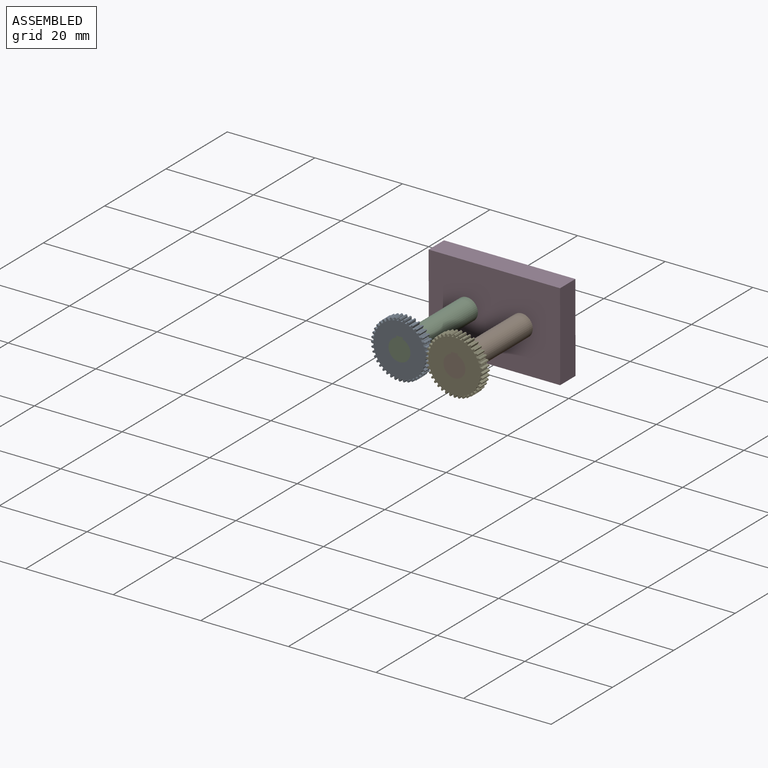
[diagram: assembled view]
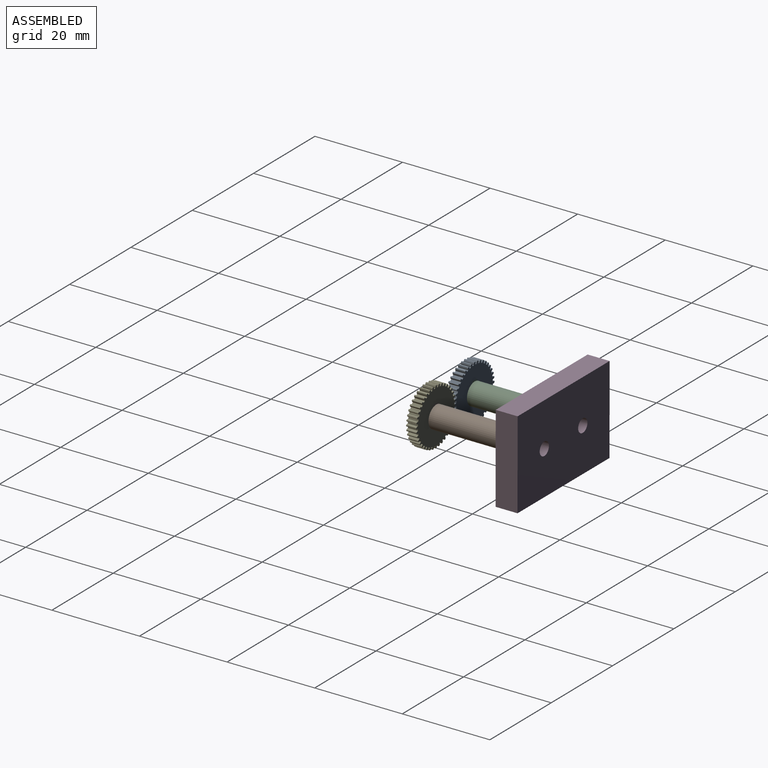
[diagram: assembled view, second angle]
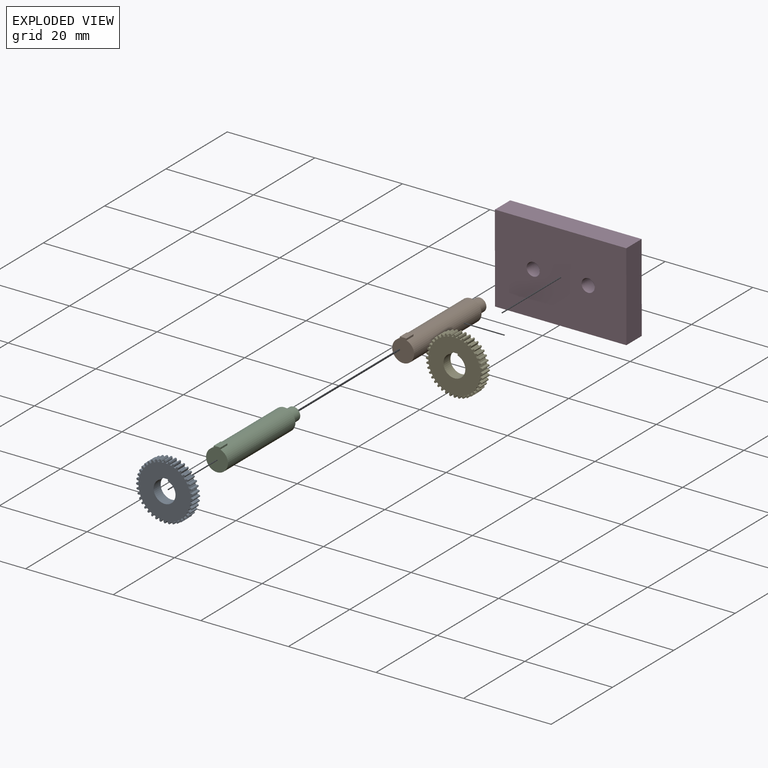
[diagram: exploded view]
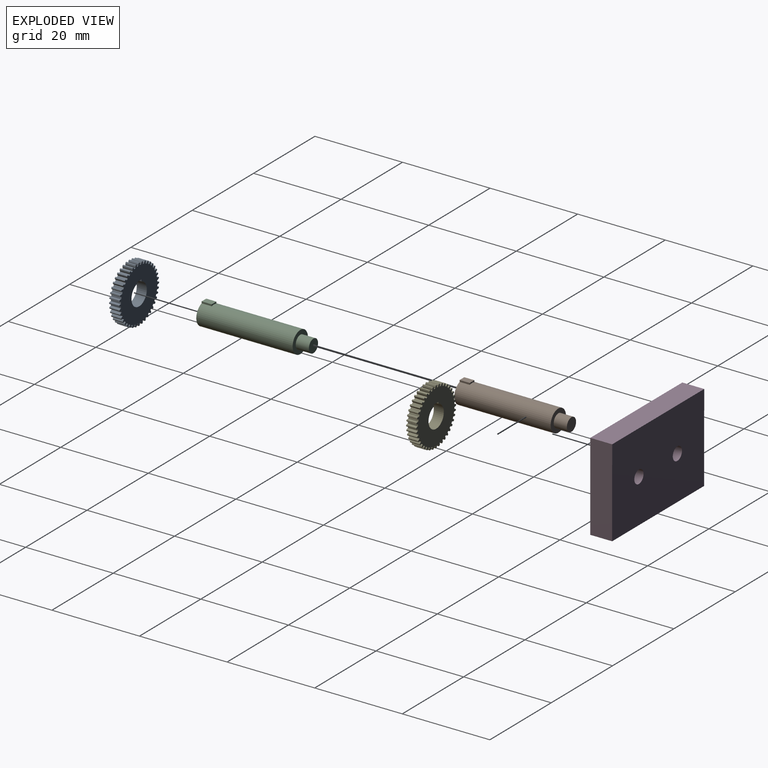
[diagram: exploded view, second angle]
ASSEMBLY  parts=5 mates=4
PART A: 246 faces, bbox 13x2.3x13 mm
  f0: cylinder r=5.95mm len=2.3mm, axis (0,-1,0), area 1mm2, adj f40,f41,f236,f237
  f1: cylinder r=5.95mm len=2.3mm, axis (0,-1,0), area 1mm2, adj f40,f41,f231,f232
  f2: cylinder r=5.95mm len=2.3mm, axis (0,-1,0), area 1mm2, adj f40,f41,f226,f227
  f3: cylinder r=5.95mm len=2.3mm, axis (0,-1,0), area 1mm2, adj f40,f41,f221,f222
  f4: cylinder r=5.95mm len=2.3mm, axis (0,-1,0), area 1mm2, adj f40,f41,f216,f217
  f5: cylinder r=5.95mm len=2.3mm, axis (0,-1,0), area 1mm2, adj f40,f41,f211,f212
  f6: cylinder r=5.95mm len=2.3mm, axis (0,-1,0), area 1mm2, adj f40,f41,f206,f207
  f7: cylinder r=5.95mm len=2.3mm, axis (0,-1,0), area 1mm2, adj f40,f41,f201,f202
  f8: cylinder r=5.95mm len=2.3mm, axis (0,-1,0), area 1mm2, adj f40,f41,f196,f197
  f9: cylinder r=5.95mm len=2.3mm, axis (0,-1,0), area 1mm2, adj f40,f41,f191,f192
  f10: cylinder r=5.95mm len=2.3mm, axis (0,-1,0), area 1mm2, adj f40,f41,f186,f187
  f11: cylinder r=5.95mm len=2.3mm, axis (0,-1,0), area 1mm2, adj f40,f41,f181,f182
  f12: cylinder r=5.95mm len=2.3mm, axis (0,-1,0), area 1mm2, adj f40,f41,f176,f177
  f13: cylinder r=5.95mm len=2.3mm, axis (0,-1,0), area 1mm2, adj f40,f41,f171,f172
  f14: cylinder r=5.95mm len=2.3mm, axis (0,-1,0), area 1mm2, adj f40,f41,f166,f167
  f15: cylinder r=5.95mm len=2.3mm, axis (0,-1,0), area 1mm2, adj f40,f41,f161,f162
  f16: cylinder r=5.95mm len=2.3mm, axis (0,-1,0), area 1mm2, adj f40,f41,f156,f157
  f17: cylinder r=5.95mm len=2.3mm, axis (0,-1,0), area 1mm2, adj f40,f41,f151,f152
  f18: cylinder r=5.95mm len=2.3mm, axis (0,-1,0), area 1mm2, adj f40,f41,f146,f147
  f19: cylinder r=5.95mm len=2.3mm, axis (0,-1,0), area 1mm2, adj f40,f41,f141,f142
  f20: cylinder r=5.95mm len=2.3mm, axis (0,-1,0), area 1mm2, adj f40,f41,f136,f137
  f21: cylinder r=5.95mm len=2.3mm, axis (0,-1,0), area 1mm2, adj f40,f41,f131,f132
  f22: cylinder r=5.95mm len=2.3mm, axis (0,-1,0), area 1mm2, adj f40,f41,f126,f127
  f23: cylinder r=5.95mm len=2.3mm, axis (0,-1,0), area 1mm2, adj f40,f41,f121,f122
  f24: cylinder r=5.95mm len=2.3mm, axis (0,-1,0), area 1mm2, adj f40,f41,f116,f117
  f25: cylinder r=5.95mm len=2.3mm, axis (0,-1,0), area 1mm2, adj f40,f41,f111,f112
  f26: cylinder r=5.95mm len=2.3mm, axis (0,-1,0), area 1mm2, adj f40,f41,f106,f107
  f27: cylinder r=5.95mm len=2.3mm, axis (0,-1,0), area 1mm2, adj f40,f41,f101,f102
  f28: cylinder r=5.95mm len=2.3mm, axis (0,-1,0), area 1mm2, adj f40,f41,f96,f97
  f29: cylinder r=5.95mm len=2.3mm, axis (0,-1,0), area 1mm2, adj f40,f41,f91,f92
  f30: cylinder r=5.95mm len=2.3mm, axis (0,-1,0), area 1mm2, adj f40,f41,f86,f87
  f31: cylinder r=5.95mm len=2.3mm, axis (0,-1,0), area 1mm2, adj f40,f41,f81,f82
  f32: cylinder r=5.95mm len=2.3mm, axis (0,-1,0), area 1mm2, adj f40,f41,f76,f77
  f33: cylinder r=5.95mm len=2.3mm, axis (0,-1,0), area 1mm2, adj f40,f41,f71,f72
  f34: cylinder r=5.95mm len=2.3mm, axis (0,-1,0), area 1mm2, adj f40,f41,f66,f67
  f35: cylinder r=5.95mm len=2.3mm, axis (0,-1,0), area 1mm2, adj f40,f41,f61,f62
  f36: cylinder r=5.95mm len=2.3mm, axis (0,-1,0), area 1mm2, adj f40,f41,f56,f57
  f37: cylinder r=5.95mm len=2.3mm, axis (0,-1,0), area 1mm2, adj f40,f41,f51,f52
  f38: cylinder r=5.95mm len=2.3mm, axis (0,-1,0), area 1mm2, adj f40,f41,f43,f47
  f39: cylinder r=5.95mm len=2.3mm, axis (0,-1,0), area 1mm2, adj f40,f41,f44,f241
  f40: plane 13x13mm, normal (0,1,0), area 100.7mm2, adj f0,f1,f2,f3,f4,f5,f6,f7
  f41: plane 13x13mm, normal (0,-1,0), area 100.7mm2, adj f0,f1,f2,f3,f4,f5,f6,f7
  f42: plane 2.3x0.29mm, normal (-0.92,0,0.4), area 0.7mm2, adj f40,f41,f43,f46
  f43: plane 2.3x0.27mm, normal (-1,0,0), area 0.6mm2, adj f38,f40,f41,f42
  f44: plane 2.3x0.27mm, normal (1,0,0), area 0.6mm2, adj f39,f40,f41,f45
  f45: plane 2.3x0.29mm, normal (0.92,0,0.4), area 0.7mm2, adj f40,f41,f44,f46
  f46: plane 2.3x0.25mm, normal (0,0,1), area 0.6mm2, adj f40,f41,f42,f45
  f47: plane 2.3x0.27mm, normal (0.99,0,0.16), area 0.6mm2, adj f38,f40,f41,f48
  f48: plane 2.3x0.26mm, normal (0.84,0,0.54), area 0.7mm2, adj f40,f41,f47,f49
  f49: plane 2.3x0.25mm, normal (-0.16,0,0.99), area 0.6mm2, adj f40,f41,f48,f50
  f50: plane 2.3x0.3mm, normal (-0.97,0,0.25), area 0.7mm2, adj f40,f41,f49,f51
  f51: plane 2.3x0.27mm, normal (-0.99,0,-0.16), area 0.6mm2, adj f37,f40,f41,f50
  f52: plane 2.3x0.26mm, normal (0.95,0,0.31), area 0.6mm2, adj f37,f40,f41,f53
  f53: plane 2.3x0.23mm, normal (0.75,0,0.66), area 0.7mm2, adj f40,f41,f52,f54
  f54: plane 2.3x0.24mm, normal (-0.31,0,0.95), area 0.6mm2, adj f40,f41,f53,f55
  f55: plane 2.3x0.31mm, normal (-1,0,0.1), area 0.7mm2, adj f40,f41,f54,f56
  f56: plane 2.3x0.26mm, normal (-0.95,0,-0.31), area 0.6mm2, adj f36,f40,f41,f55
  f57: plane 2.3x0.24mm, normal (0.89,0,0.45), area 0.6mm2, adj f36,f40,f41,f58
  f58: plane 2.3x0.24mm, normal (0.63,0,0.77), area 0.7mm2, adj f40,f41,f57,f59
  f59: plane 2.3x0.22mm, normal (-0.45,0,0.89), area 0.6mm2, adj f40,f41,f58,f60
  f60: plane 2.3x0.31mm, normal (-1,0,-0.06), area 0.7mm2, adj f40,f41,f59,f61
  f61: plane 2.3x0.24mm, normal (-0.89,0,-0.45), area 0.6mm2, adj f35,f40,f41,f60
  f62: plane 2.3x0.22mm, normal (0.81,0,0.59), area 0.6mm2, adj f35,f40,f41,f63
  f63: plane 2.3x0.27mm, normal (0.51,0,0.86), area 0.7mm2, adj f40,f41,f62,f64
  f64: plane 2.3x0.2mm, normal (-0.59,0,0.81), area 0.6mm2, adj f40,f41,f63,f65
  f65: plane 2.3x0.3mm, normal (-0.98,0,-0.21), area 0.7mm2, adj f40,f41,f64,f66
  f66: plane 2.3x0.22mm, normal (-0.81,0,-0.59), area 0.6mm2, adj f34,f40,f41,f65
  f67: plane 2.3x0.19mm, normal (0.71,0,0.71), area 0.6mm2, adj f34,f40,f41,f68
  f68: plane 2.3x0.29mm, normal (0.36,0,0.93), area 0.7mm2, adj f40,f41,f67,f69
  f69: plane 2.3x0.18mm, normal (-0.71,0,0.71), area 0.6mm2, adj f40,f41,f68,f70
  f70: plane 2.3x0.29mm, normal (-0.93,0,-0.36), area 0.7mm2, adj f40,f41,f69,f71
  f71: plane 2.3x0.19mm, normal (-0.71,0,-0.71), area 0.6mm2, adj f33,f40,f41,f70
  f72: plane 2.3x0.22mm, normal (0.59,0,0.81), area 0.6mm2, adj f33,f40,f41,f73
  f73: plane 2.3x0.3mm, normal (0.21,0,0.98), area 0.7mm2, adj f40,f41,f72,f74
  f74: plane 2.3x0.2mm, normal (-0.81,0,0.59), area 0.6mm2, adj f40,f41,f73,f75
  f75: plane 2.3x0.27mm, normal (-0.86,0,-0.51), area 0.7mm2, adj f40,f41,f74,f76
  f76: plane 2.3x0.22mm, normal (-0.59,0,-0.81), area 0.6mm2, adj f32,f40,f41,f75
  f77: plane 2.3x0.24mm, normal (0.45,0,0.89), area 0.6mm2, adj f32,f40,f41,f78
  f78: plane 2.3x0.31mm, normal (0.06,0,1), area 0.7mm2, adj f40,f41,f77,f79
  f79: plane 2.3x0.22mm, normal (-0.89,0,0.45), area 0.6mm2, adj f40,f41,f78,f80
  f80: plane 2.3x0.24mm, normal (-0.77,0,-0.63), area 0.7mm2, adj f40,f41,f79,f81
  f81: plane 2.3x0.24mm, normal (-0.45,0,-0.89), area 0.6mm2, adj f31,f40,f41,f80
  f82: plane 2.3x0.26mm, normal (0.31,0,0.95), area 0.6mm2, adj f31,f40,f41,f83
  f83: plane 2.3x0.31mm, normal (-0.1,0,1), area 0.7mm2, adj f40,f41,f82,f84
  f84: plane 2.3x0.24mm, normal (-0.95,0,0.31), area 0.6mm2, adj f40,f41,f83,f85
  f85: plane 2.3x0.23mm, normal (-0.66,0,-0.75), area 0.7mm2, adj f40,f41,f84,f86
  f86: plane 2.3x0.26mm, normal (-0.31,0,-0.95), area 0.6mm2, adj f30,f40,f41,f85
  f87: plane 2.3x0.27mm, normal (0.16,0,0.99), area 0.6mm2, adj f30,f40,f41,f88
  f88: plane 2.3x0.3mm, normal (-0.25,0,0.97), area 0.7mm2, adj f40,f41,f87,f89
  f89: plane 2.3x0.25mm, normal (-0.99,0,0.16), area 0.6mm2, adj f40,f41,f88,f90
  f90: plane 2.3x0.26mm, normal (-0.54,0,-0.84), area 0.7mm2, adj f40,f41,f89,f91
  f91: plane 2.3x0.27mm, normal (-0.16,0,-0.99), area 0.6mm2, adj f29,f40,f41,f90
  f92: plane 2.3x0.27mm, normal (0,0,1), area 0.6mm2, adj f29,f40,f41,f93
  f93: plane 2.3x0.29mm, normal (-0.4,0,0.92), area 0.7mm2, adj f40,f41,f92,f94
  f94: plane 2.3x0.25mm, normal (-1,0,0), area 0.6mm2, adj f40,f41,f93,f95
  f95: plane 2.3x0.29mm, normal (-0.4,0,-0.92), area 0.7mm2, adj f40,f41,f94,f96
  f96: plane 2.3x0.27mm, normal (0,0,-1), area 0.6mm2, adj f28,f40,f41,f95
  f97: plane 2.3x0.27mm, normal (-0.16,0,0.99), area 0.6mm2, adj f28,f40,f41,f98
  f98: plane 2.3x0.26mm, normal (-0.54,0,0.84), area 0.7mm2, adj f40,f41,f97,f99
  f99: plane 2.3x0.25mm, normal (-0.99,0,-0.16), area 0.6mm2, adj f40,f41,f98,f100
  f100: plane 2.3x0.3mm, normal (-0.25,0,-0.97), area 0.7mm2, adj f40,f41,f99,f101
  f101: plane 2.3x0.27mm, normal (0.16,0,-0.99), area 0.6mm2, adj f27,f40,f41,f100
  f102: plane 2.3x0.26mm, normal (-0.31,0,0.95), area 0.6mm2, adj f27,f40,f41,f103
  f103: plane 2.3x0.23mm, normal (-0.66,0,0.75), area 0.7mm2, adj f40,f41,f102,f104
  f104: plane 2.3x0.24mm, normal (-0.95,0,-0.31), area 0.6mm2, adj f40,f41,f103,f105
  f105: plane 2.3x0.31mm, normal (-0.1,0,-1), area 0.7mm2, adj f40,f41,f104,f106
  f106: plane 2.3x0.26mm, normal (0.31,0,-0.95), area 0.6mm2, adj f26,f40,f41,f105
  f107: plane 2.3x0.24mm, normal (-0.45,0,0.89), area 0.6mm2, adj f26,f40,f41,f108
  f108: plane 2.3x0.24mm, normal (-0.77,0,0.63), area 0.7mm2, adj f40,f41,f107,f109
  f109: plane 2.3x0.22mm, normal (-0.89,0,-0.45), area 0.6mm2, adj f40,f41,f108,f110
  f110: plane 2.3x0.31mm, normal (0.06,0,-1), area 0.7mm2, adj f40,f41,f109,f111
  f111: plane 2.3x0.24mm, normal (0.45,0,-0.89), area 0.6mm2, adj f25,f40,f41,f110
  f112: plane 2.3x0.22mm, normal (-0.59,0,0.81), area 0.6mm2, adj f25,f40,f41,f113
  f113: plane 2.3x0.27mm, normal (-0.86,0,0.51), area 0.7mm2, adj f40,f41,f112,f114
  f114: plane 2.3x0.2mm, normal (-0.81,0,-0.59), area 0.6mm2, adj f40,f41,f113,f115
  f115: plane 2.3x0.3mm, normal (0.21,0,-0.98), area 0.7mm2, adj f40,f41,f114,f116
  f116: plane 2.3x0.22mm, normal (0.59,0,-0.81), area 0.6mm2, adj f24,f40,f41,f115
  f117: plane 2.3x0.19mm, normal (-0.71,0,0.71), area 0.6mm2, adj f24,f40,f41,f118
  f118: plane 2.3x0.29mm, normal (-0.93,0,0.36), area 0.7mm2, adj f40,f41,f117,f119
  f119: plane 2.3x0.18mm, normal (-0.71,0,-0.71), area 0.6mm2, adj f40,f41,f118,f120
  f120: plane 2.3x0.29mm, normal (0.36,0,-0.93), area 0.7mm2, adj f40,f41,f119,f121
  f121: plane 2.3x0.19mm, normal (0.71,0,-0.71), area 0.6mm2, adj f23,f40,f41,f120
  f122: plane 2.3x0.22mm, normal (-0.81,0,0.59), area 0.6mm2, adj f23,f40,f41,f123
  f123: plane 2.3x0.3mm, normal (-0.98,0,0.21), area 0.7mm2, adj f40,f41,f122,f124
  f124: plane 2.3x0.2mm, normal (-0.59,0,-0.81), area 0.6mm2, adj f40,f41,f123,f125
  f125: plane 2.3x0.27mm, normal (0.51,0,-0.86), area 0.7mm2, adj f40,f41,f124,f126
  f126: plane 2.3x0.22mm, normal (0.81,0,-0.59), area 0.6mm2, adj f22,f40,f41,f125
  f127: plane 2.3x0.24mm, normal (-0.89,0,0.45), area 0.6mm2, adj f22,f40,f41,f128
  f128: plane 2.3x0.31mm, normal (-1,0,0.06), area 0.7mm2, adj f40,f41,f127,f129
  f129: plane 2.3x0.22mm, normal (-0.45,0,-0.89), area 0.6mm2, adj f40,f41,f128,f130
  f130: plane 2.3x0.24mm, normal (0.63,0,-0.77), area 0.7mm2, adj f40,f41,f129,f131
  f131: plane 2.3x0.24mm, normal (0.89,0,-0.45), area 0.6mm2, adj f21,f40,f41,f130
  f132: plane 2.3x0.26mm, normal (-0.95,0,0.31), area 0.6mm2, adj f21,f40,f41,f133
  f133: plane 2.3x0.31mm, normal (-1,0,-0.1), area 0.7mm2, adj f40,f41,f132,f134
  f134: plane 2.3x0.24mm, normal (-0.31,0,-0.95), area 0.6mm2, adj f40,f41,f133,f135
  f135: plane 2.3x0.23mm, normal (0.75,0,-0.66), area 0.7mm2, adj f40,f41,f134,f136
  f136: plane 2.3x0.26mm, normal (0.95,0,-0.31), area 0.6mm2, adj f20,f40,f41,f135
  f137: plane 2.3x0.27mm, normal (-0.99,0,0.16), area 0.6mm2, adj f20,f40,f41,f138
  f138: plane 2.3x0.3mm, normal (-0.97,0,-0.25), area 0.7mm2, adj f40,f41,f137,f139
  f139: plane 2.3x0.25mm, normal (-0.16,0,-0.99), area 0.6mm2, adj f40,f41,f138,f140
  f140: plane 2.3x0.26mm, normal (0.84,0,-0.54), area 0.7mm2, adj f40,f41,f139,f141
  f141: plane 2.3x0.27mm, normal (0.99,0,-0.16), area 0.6mm2, adj f19,f40,f41,f140
  f142: plane 2.3x0.27mm, normal (-1,0,0), area 0.6mm2, adj f19,f40,f41,f143
  f143: plane 2.3x0.29mm, normal (-0.92,0,-0.4), area 0.7mm2, adj f40,f41,f142,f144
  f144: plane 2.3x0.25mm, normal (0,0,-1), area 0.6mm2, adj f40,f41,f143,f145
  f145: plane 2.3x0.29mm, normal (0.92,0,-0.4), area 0.7mm2, adj f40,f41,f144,f146
  f146: plane 2.3x0.27mm, normal (1,0,0), area 0.6mm2, adj f18,f40,f41,f145
  f147: plane 2.3x0.27mm, normal (-0.99,0,-0.16), area 0.6mm2, adj f18,f40,f41,f148
  f148: plane 2.3x0.26mm, normal (-0.84,0,-0.54), area 0.7mm2, adj f40,f41,f147,f149
  f149: plane 2.3x0.25mm, normal (0.16,0,-0.99), area 0.6mm2, adj f40,f41,f148,f150
  f150: plane 2.3x0.3mm, normal (0.97,0,-0.25), area 0.7mm2, adj f40,f41,f149,f151
  f151: plane 2.3x0.27mm, normal (0.99,0,0.16), area 0.6mm2, adj f17,f40,f41,f150
  f152: plane 2.3x0.26mm, normal (-0.95,0,-0.31), area 0.6mm2, adj f17,f40,f41,f153
  f153: plane 2.3x0.23mm, normal (-0.75,0,-0.66), area 0.7mm2, adj f40,f41,f152,f154
  f154: plane 2.3x0.24mm, normal (0.31,0,-0.95), area 0.6mm2, adj f40,f41,f153,f155
  f155: plane 2.3x0.31mm, normal (1,0,-0.1), area 0.7mm2, adj f40,f41,f154,f156
  f156: plane 2.3x0.26mm, normal (0.95,0,0.31), area 0.6mm2, adj f16,f40,f41,f155
  f157: plane 2.3x0.24mm, normal (-0.89,0,-0.45), area 0.6mm2, adj f16,f40,f41,f158
  f158: plane 2.3x0.24mm, normal (-0.63,0,-0.77), area 0.7mm2, adj f40,f41,f157,f159
  f159: plane 2.3x0.22mm, normal (0.45,0,-0.89), area 0.6mm2, adj f40,f41,f158,f160
  f160: plane 2.3x0.31mm, normal (1,0,0.06), area 0.7mm2, adj f40,f41,f159,f161
  f161: plane 2.3x0.24mm, normal (0.89,0,0.45), area 0.6mm2, adj f15,f40,f41,f160
  f162: plane 2.3x0.22mm, normal (-0.81,0,-0.59), area 0.6mm2, adj f15,f40,f41,f163
  f163: plane 2.3x0.27mm, normal (-0.51,0,-0.86), area 0.7mm2, adj f40,f41,f162,f164
  f164: plane 2.3x0.2mm, normal (0.59,0,-0.81), area 0.6mm2, adj f40,f41,f163,f165
  f165: plane 2.3x0.3mm, normal (0.98,0,0.21), area 0.7mm2, adj f40,f41,f164,f166
  f166: plane 2.3x0.22mm, normal (0.81,0,0.59), area 0.6mm2, adj f14,f40,f41,f165
  f167: plane 2.3x0.19mm, normal (-0.71,0,-0.71), area 0.6mm2, adj f14,f40,f41,f168
  f168: plane 2.3x0.29mm, normal (-0.36,0,-0.93), area 0.7mm2, adj f40,f41,f167,f169
  f169: plane 2.3x0.18mm, normal (0.71,0,-0.71), area 0.6mm2, adj f40,f41,f168,f170
  f170: plane 2.3x0.29mm, normal (0.93,0,0.36), area 0.7mm2, adj f40,f41,f169,f171
  f171: plane 2.3x0.19mm, normal (0.71,0,0.71), area 0.6mm2, adj f13,f40,f41,f170
  f172: plane 2.3x0.22mm, normal (-0.59,0,-0.81), area 0.6mm2, adj f13,f40,f41,f173
  f173: plane 2.3x0.3mm, normal (-0.21,0,-0.98), area 0.7mm2, adj f40,f41,f172,f174
  f174: plane 2.3x0.2mm, normal (0.81,0,-0.59), area 0.6mm2, adj f40,f41,f173,f175
  f175: plane 2.3x0.27mm, normal (0.86,0,0.51), area 0.7mm2, adj f40,f41,f174,f176
  f176: plane 2.3x0.22mm, normal (0.59,0,0.81), area 0.6mm2, adj f12,f40,f41,f175
  f177: plane 2.3x0.24mm, normal (-0.45,0,-0.89), area 0.6mm2, adj f12,f40,f41,f178
  f178: plane 2.3x0.31mm, normal (-0.06,0,-1), area 0.7mm2, adj f40,f41,f177,f179
  f179: plane 2.3x0.22mm, normal (0.89,0,-0.45), area 0.6mm2, adj f40,f41,f178,f180
  f180: plane 2.3x0.24mm, normal (0.77,0,0.63), area 0.7mm2, adj f40,f41,f179,f181
  f181: plane 2.3x0.24mm, normal (0.45,0,0.89), area 0.6mm2, adj f11,f40,f41,f180
  f182: plane 2.3x0.26mm, normal (-0.31,0,-0.95), area 0.6mm2, adj f11,f40,f41,f183
  f183: plane 2.3x0.31mm, normal (0.1,0,-1), area 0.7mm2, adj f40,f41,f182,f184
  f184: plane 2.3x0.24mm, normal (0.95,0,-0.31), area 0.6mm2, adj f40,f41,f183,f185
  f185: plane 2.3x0.23mm, normal (0.66,0,0.75), area 0.7mm2, adj f40,f41,f184,f186
  f186: plane 2.3x0.26mm, normal (0.31,0,0.95), area 0.6mm2, adj f10,f40,f41,f185
  f187: plane 2.3x0.27mm, normal (-0.16,0,-0.99), area 0.6mm2, adj f10,f40,f41,f188
  f188: plane 2.3x0.3mm, normal (0.25,0,-0.97), area 0.7mm2, adj f40,f41,f187,f189
  f189: plane 2.3x0.25mm, normal (0.99,0,-0.16), area 0.6mm2, adj f40,f41,f188,f190
  f190: plane 2.3x0.26mm, normal (0.54,0,0.84), area 0.7mm2, adj f40,f41,f189,f191
  f191: plane 2.3x0.27mm, normal (0.16,0,0.99), area 0.6mm2, adj f9,f40,f41,f190
  f192: plane 2.3x0.27mm, normal (0,0,-1), area 0.6mm2, adj f9,f40,f41,f193
  f193: plane 2.3x0.29mm, normal (0.4,0,-0.92), area 0.7mm2, adj f40,f41,f192,f194
  f194: plane 2.3x0.25mm, normal (1,0,0), area 0.6mm2, adj f40,f41,f193,f195
  f195: plane 2.3x0.29mm, normal (0.4,0,0.92), area 0.7mm2, adj f40,f41,f194,f196
  f196: plane 2.3x0.27mm, normal (0,0,1), area 0.6mm2, adj f8,f40,f41,f195
  f197: plane 2.3x0.27mm, normal (0.16,0,-0.99), area 0.6mm2, adj f8,f40,f41,f198
  f198: plane 2.3x0.26mm, normal (0.54,0,-0.84), area 0.7mm2, adj f40,f41,f197,f199
  f199: plane 2.3x0.25mm, normal (0.99,0,0.16), area 0.6mm2, adj f40,f41,f198,f200
  f200: plane 2.3x0.3mm, normal (0.25,0,0.97), area 0.7mm2, adj f40,f41,f199,f201
  f201: plane 2.3x0.27mm, normal (-0.16,0,0.99), area 0.6mm2, adj f7,f40,f41,f200
  f202: plane 2.3x0.26mm, normal (0.31,0,-0.95), area 0.6mm2, adj f7,f40,f41,f203
  f203: plane 2.3x0.23mm, normal (0.66,0,-0.75), area 0.7mm2, adj f40,f41,f202,f204
  f204: plane 2.3x0.24mm, normal (0.95,0,0.31), area 0.6mm2, adj f40,f41,f203,f205
  f205: plane 2.3x0.31mm, normal (0.1,0,1), area 0.7mm2, adj f40,f41,f204,f206
  f206: plane 2.3x0.26mm, normal (-0.31,0,0.95), area 0.6mm2, adj f6,f40,f41,f205
  f207: plane 2.3x0.24mm, normal (0.45,0,-0.89), area 0.6mm2, adj f6,f40,f41,f208
  f208: plane 2.3x0.24mm, normal (0.77,0,-0.63), area 0.7mm2, adj f40,f41,f207,f209
  f209: plane 2.3x0.22mm, normal (0.89,0,0.45), area 0.6mm2, adj f40,f41,f208,f210
  f210: plane 2.3x0.31mm, normal (-0.06,0,1), area 0.7mm2, adj f40,f41,f209,f211
  f211: plane 2.3x0.24mm, normal (-0.45,0,0.89), area 0.6mm2, adj f5,f40,f41,f210
  f212: plane 2.3x0.22mm, normal (0.59,0,-0.81), area 0.6mm2, adj f5,f40,f41,f213
  f213: plane 2.3x0.27mm, normal (0.86,0,-0.51), area 0.7mm2, adj f40,f41,f212,f214
  f214: plane 2.3x0.2mm, normal (0.81,0,0.59), area 0.6mm2, adj f40,f41,f213,f215
  f215: plane 2.3x0.3mm, normal (-0.21,0,0.98), area 0.7mm2, adj f40,f41,f214,f216
  f216: plane 2.3x0.22mm, normal (-0.59,0,0.81), area 0.6mm2, adj f4,f40,f41,f215
  f217: plane 2.3x0.19mm, normal (0.71,0,-0.71), area 0.6mm2, adj f4,f40,f41,f218
  f218: plane 2.3x0.29mm, normal (0.93,0,-0.36), area 0.7mm2, adj f40,f41,f217,f219
  f219: plane 2.3x0.18mm, normal (0.71,0,0.71), area 0.6mm2, adj f40,f41,f218,f220
  f220: plane 2.3x0.29mm, normal (-0.36,0,0.93), area 0.7mm2, adj f40,f41,f219,f221
  f221: plane 2.3x0.19mm, normal (-0.71,0,0.71), area 0.6mm2, adj f3,f40,f41,f220
  f222: plane 2.3x0.22mm, normal (0.81,0,-0.59), area 0.6mm2, adj f3,f40,f41,f223
  f223: plane 2.3x0.3mm, normal (0.98,0,-0.21), area 0.7mm2, adj f40,f41,f222,f224
  f224: plane 2.3x0.2mm, normal (0.59,0,0.81), area 0.6mm2, adj f40,f41,f223,f225
  f225: plane 2.3x0.27mm, normal (-0.51,0,0.86), area 0.7mm2, adj f40,f41,f224,f226
  f226: plane 2.3x0.22mm, normal (-0.81,0,0.59), area 0.6mm2, adj f2,f40,f41,f225
  f227: plane 2.3x0.24mm, normal (0.89,0,-0.45), area 0.6mm2, adj f2,f40,f41,f228
  f228: plane 2.3x0.31mm, normal (1,0,-0.06), area 0.7mm2, adj f40,f41,f227,f229
  f229: plane 2.3x0.22mm, normal (0.45,0,0.89), area 0.6mm2, adj f40,f41,f228,f230
  f230: plane 2.3x0.24mm, normal (-0.63,0,0.77), area 0.7mm2, adj f40,f41,f229,f231
  f231: plane 2.3x0.24mm, normal (-0.89,0,0.45), area 0.6mm2, adj f1,f40,f41,f230
  f232: plane 2.3x0.26mm, normal (0.95,0,-0.31), area 0.6mm2, adj f1,f40,f41,f233
  f233: plane 2.3x0.31mm, normal (1,0,0.1), area 0.7mm2, adj f40,f41,f232,f234
  f234: plane 2.3x0.24mm, normal (0.31,0,0.95), area 0.6mm2, adj f40,f41,f233,f235
  f235: plane 2.3x0.23mm, normal (-0.75,0,0.66), area 0.7mm2, adj f40,f41,f234,f236
  f236: plane 2.3x0.26mm, normal (-0.95,0,0.31), area 0.6mm2, adj f0,f40,f41,f235
  f237: plane 2.3x0.27mm, normal (0.99,0,-0.16), area 0.6mm2, adj f0,f40,f41,f238
  f238: plane 2.3x0.3mm, normal (0.97,0,0.25), area 0.7mm2, adj f40,f41,f237,f239
  f239: plane 2.3x0.25mm, normal (0.16,0,0.99), area 0.6mm2, adj f40,f41,f238,f240
  f240: plane 2.3x0.26mm, normal (-0.84,0,0.54), area 0.7mm2, adj f40,f41,f239,f241
  f241: plane 2.3x0.27mm, normal (-0.99,0,0.16), area 0.6mm2, adj f39,f40,f41,f240
  f242: plane 2.3x0.4mm, normal (1,0,0), area 0.9mm2, adj f40,f41,f243,f244
  f243: plane 2.3x1.5mm, normal (0,0,-1), area 3.4mm2, adj f40,f41,f242,f245
  f244: cylinder r=2.5mm len=5mm, axis (0,-1,0), area 32.6mm2, adj f40,f41,f242,f245
  f245: plane 2.3x0.4mm, normal (-1,0,0), area 0.9mm2, adj f40,f41,f243,f244
PART B: 9 faces, bbox 5x25x5.3 mm
  f0: cylinder r=2.5mm len=22mm, axis (0,1,0), area 342.1mm2, adj f1,f3,f6,f7,f8
  f1: plane 5.28x5mm, normal (0,1,0), area 20.1mm2, adj f0,f5,f6,f7
  f2: cylinder r=1.5mm len=3mm, axis (0,-1,0), area 28.3mm2, adj f3,f4
  f3: plane 5x5mm, normal (0,-1,0), area 12.6mm2, adj f0,f2
  f4: plane 3x3mm, normal (0,-1,0), area 7.1mm2, adj f2
  f5: plane 2.3x1.5mm, normal (0,0,1), area 3.4mm2, adj f1,f6,f7,f8
  f6: plane 2.3x0.4mm, normal (1,0,0), area 0.9mm2, adj f0,f1,f5,f8
  f7: plane 2.3x0.4mm, normal (-1,0,0), area 0.9mm2, adj f0,f1,f5,f8
  f8: plane 1.5x0.4mm, normal (0,-1,0), area 0.5mm2, adj f0,f5,f6,f7
PART C: same geometry as B
PART D: 8 faces, bbox 30x5x20 mm
  f0: plane 30x5mm, normal (0,0,-1), area 150mm2, adj f1,f3,f4,f5
  f1: plane 20x5mm, normal (1,0,0), area 100mm2, adj f0,f2,f4,f5
  f2: plane 30x5mm, normal (0,0,1), area 150mm2, adj f1,f3,f4,f5
  f3: plane 20x5mm, normal (-1,0,0), area 100mm2, adj f0,f2,f4,f5
  f4: plane 30x20mm, normal (0,1,0), area 585.9mm2, adj f0,f1,f2,f3,f6,f7
  f5: plane 30x20mm, normal (0,-1,0), area 585.9mm2, adj f0,f1,f2,f3,f6,f7
  f6: cylinder r=1.5mm len=5mm, axis (0,-1,0), area 47.1mm2, adj f4,f5
  f7: cylinder r=1.5mm len=5mm, axis (0,-1,0), area 47.1mm2, adj f4,f5
PART E: same geometry as A
PLACE A rot(axis=(0,0,1),180deg) t=(34.9,-17.07,17.29)mm
PLACE B rot(axis=(0,0,1),180deg) t=(47.44,-19.37,17.3)mm
PLACE C rot(axis=(0,0,1),180deg) t=(34.9,-19.37,17.29)mm
PLACE D rot(axis=(0,-1,0),0.1deg) t=(41.17,2.63,17.29)mm
PLACE E rot(axis=(0,0,-1),180deg) t=(47.44,-17.07,17.3)mm
MATE fastened E.f244 <-> B.f0  axis (0,-1,0) through (47.44,-19.37,17.3)mm
MATE fastened C.f2 <-> D.f7  axis (0,1,0) through (34.9,2.63,17.29)mm
MATE fastened A.f0 <-> C.f0  axis (0,-1,0) through (34.9,-19.37,17.29)mm
MATE fastened B.f2 <-> D.f6  axis (0,1,0) through (47.44,2.63,17.3)mm
